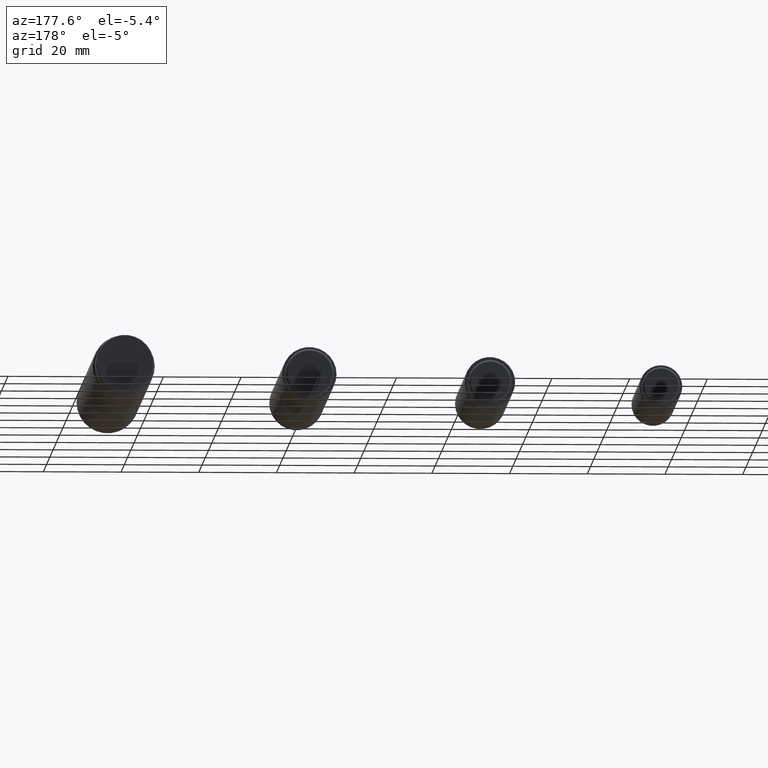
[diagram: clean part render]
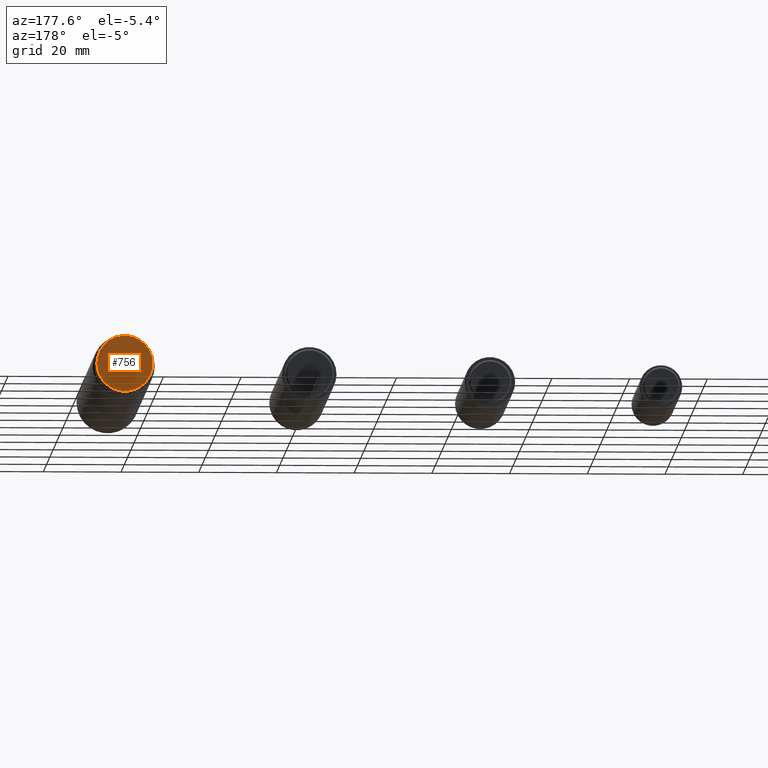
[diagram: same view with one face highlighted and labeled with its STEP entity id]
A machine part, auxiliary view. The second image highlights one B-rep face of the part: STEP entity #756.
In plain terms, the highlighted planar face has unit normal (0, 1, 0).
Its self-contained STEP definition (entity closure, byte-faithful):
#124=PLANE('',#886);
#248=FACE_OUTER_BOUND('',#352,.T.);
#352=EDGE_LOOP('',(#652));
#429=CIRCLE('',#883,7.2);
#489=VERTEX_POINT('',#1384);
#549=EDGE_CURVE('',#489,#489,#429,.T.);
#652=ORIENTED_EDGE('',*,*,#549,.F.);
#756=ADVANCED_FACE('',(#248),#124,.T.);
#883=AXIS2_PLACEMENT_3D('',#1385,#1136,#1137);
#886=AXIS2_PLACEMENT_3D('',#1389,#1142,#1143);
#1136=DIRECTION('center_axis',(1.22124532708767E-16,-1.,0.));
#1137=DIRECTION('ref_axis',(1.,1.22124532708767E-16,0.));
#1142=DIRECTION('center_axis',(-1.22124532708767E-16,1.,0.));
#1143=DIRECTION('ref_axis',(0.,0.,1.));
#1384=CARTESIAN_POINT('',(-7.2,-8.79296635503124E-16,-8.81745695386094E-16));
#1385=CARTESIAN_POINT('Origin',(5.39260384428426E-32,0.,0.));
#1389=CARTESIAN_POINT('Origin',(0.,0.,0.));